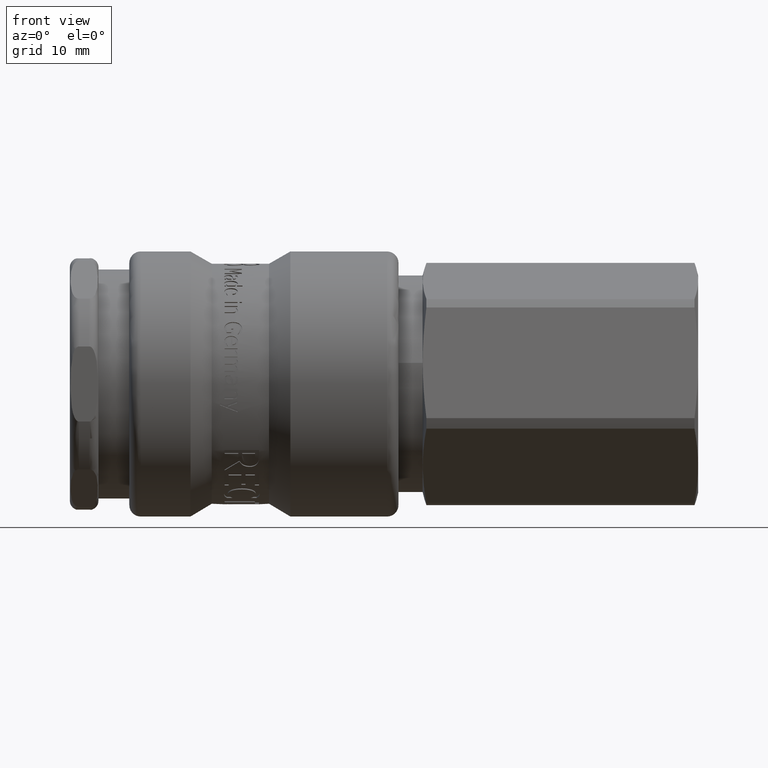
[diagram: clean part render]
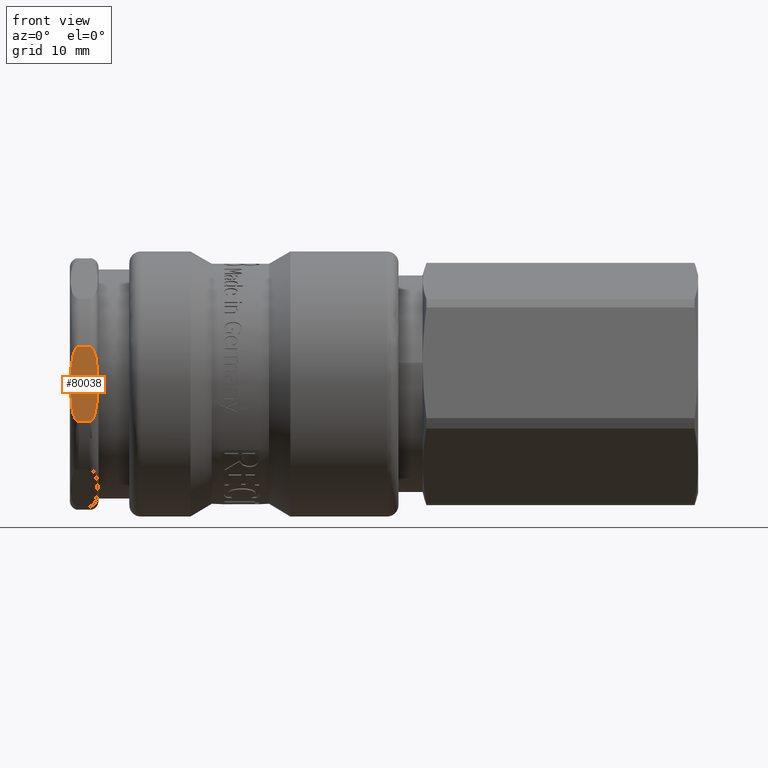
[diagram: same view with one face highlighted and labeled with its STEP entity id]
A machine part, front view. The second image highlights one B-rep face of the part: STEP entity #80038.
In plain terms, the highlighted planar face has unit normal (0, 1, 0).
Its self-contained STEP definition (entity closure, byte-faithful):
#79553=CARTESIAN_POINT('',(0.799999999999998,-10.500000000000004,-3.278719262150994));
#79554=VERTEX_POINT('',#79553);
#79562=CARTESIAN_POINT('',(0.799999999999998,-10.500000000000004,3.278719262150998));
#79563=VERTEX_POINT('',#79562);
#79564=CARTESIAN_POINT('',(0.799999999999998,-10.500000000000004,-3.278719262150994));
#79565=CARTESIAN_POINT('',(0.777895532084728,-10.500000000000004,-3.278719262150994));
#79566=CARTESIAN_POINT('',(0.75166561780548,-10.500000000000004,-3.274771300712465));
#79567=CARTESIAN_POINT('',(0.706034173954641,-10.500000000000004,-3.2613745990915));
#79568=CARTESIAN_POINT('',(0.678365053849381,-10.500000000000004,-3.248439310874959));
#79569=CARTESIAN_POINT('',(0.589002555618165,-10.500000000000004,-3.193187925023121));
#79570=CARTESIAN_POINT('',(0.527394977988849,-10.5,-3.120173886764246));
#79571=CARTESIAN_POINT('',(0.39676149208023,-10.5,-2.919047819138346));
#79572=CARTESIAN_POINT('',(0.330435911178499,-10.5,-2.738591631614819));
#79573=CARTESIAN_POINT('',(0.174245442307713,-10.5,-2.191493105213068));
#79574=CARTESIAN_POINT('',(0.126032054088558,-10.5,-1.749150668261573));
#79575=CARTESIAN_POINT('',(0.06664131136934,-10.5,-0.857870751619868));
#79576=CARTESIAN_POINT('',(0.058380151290432,-10.5,-0.408741346034068));
#79577=CARTESIAN_POINT('',(0.058380151290432,-10.5,1.748601E-015));
#79578=CARTESIAN_POINT('',(0.058380151290432,-10.5,0.408741346034072));
#79579=CARTESIAN_POINT('',(0.06664131136934,-10.5,0.857870751619872));
#79580=CARTESIAN_POINT('',(0.126032054088558,-10.5,1.749150668261577));
#79581=CARTESIAN_POINT('',(0.174245442307713,-10.5,2.191493105213072));
#79582=CARTESIAN_POINT('',(0.330435911178499,-10.5,2.738591631614822));
#79583=CARTESIAN_POINT('',(0.39676149208023,-10.5,2.91904781913835));
#79584=CARTESIAN_POINT('',(0.527394977988849,-10.5,3.12017388676425));
#79585=CARTESIAN_POINT('',(0.589002555618165,-10.500000000000004,3.193187925023124));
#79586=CARTESIAN_POINT('',(0.678365053849381,-10.500000000000004,3.248439310874962));
#79587=CARTESIAN_POINT('',(0.706034173954641,-10.500000000000004,3.261374599091504));
#79588=CARTESIAN_POINT('',(0.75166561780548,-10.500000000000004,3.274771300712468));
#79589=CARTESIAN_POINT('',(0.777895532084728,-10.5,3.278719262151005));
#79590=CARTESIAN_POINT('',(0.799999999999998,-10.5,3.278719262151005));
#79591=B_SPLINE_CURVE_WITH_KNOTS('',3,(#79564,#79565,#79566,#79567,#79568,#79569,#79570,#79571,#79572,#79573,#79574,#79575,#79576,#79577,#79578,#79579,#79580,#79581,#79582,#79583,#79584,#79585,#79586,#79587,#79588,#79589,#79590),.UNSPECIFIED.,.F.,.U.,(4,2,2,2,2,2,3,2,2,2,2,2,4),(-0.331459991565857,-0.324828651191276,-0.317192790529879,-0.293309554510366,-0.245244807620442,-0.122622403810221,0.0,0.122622403810221,0.245244807620442,0.293309554510366,0.317192790529879,0.324828651191276,0.331459991565857),.UNSPECIFIED.);
#79592=EDGE_CURVE('',#79554,#79563,#79591,.T.);
#79707=CARTESIAN_POINT('',(1.7,-10.500000000000004,-3.278719262150994));
#79708=VERTEX_POINT('',#79707);
#79716=CARTESIAN_POINT('',(1.7,-10.500000000000004,-3.278719262150994));
#79717=DIRECTION('',(-1.0,0.0,0.0));
#79718=VECTOR('',#79717,0.900000000000002);
#79719=LINE('',#79716,#79718);
#79720=EDGE_CURVE('',#79708,#79554,#79719,.T.);
#79731=CARTESIAN_POINT('',(1.7,-10.500000000000004,3.278719262150998));
#79732=VERTEX_POINT('',#79731);
#79733=CARTESIAN_POINT('',(0.799999999999998,-10.500000000000004,3.278719262150998));
#79734=DIRECTION('',(1.0,0.0,0.0));
#79735=VECTOR('',#79734,0.900000000000002);
#79736=LINE('',#79733,#79735);
#79737=EDGE_CURVE('',#79563,#79732,#79736,.T.);
#79937=CARTESIAN_POINT('',(1.7,-10.5,3.278719262151005));
#79938=CARTESIAN_POINT('',(1.722104467915271,-10.5,3.278719262151005));
#79939=CARTESIAN_POINT('',(1.748334382194518,-10.500000000000004,3.274771300712468));
#79940=CARTESIAN_POINT('',(1.793965826045357,-10.500000000000004,3.261374599091504));
#79941=CARTESIAN_POINT('',(1.821634946150617,-10.500000000000004,3.248439310874962));
#79942=CARTESIAN_POINT('',(1.910997444381834,-10.500000000000004,3.193187925023124));
#79943=CARTESIAN_POINT('',(1.972605022011149,-10.500000000000004,3.12017388676425));
#79944=CARTESIAN_POINT('',(2.103238507919768,-10.500000000000004,2.91904781913835));
#79945=CARTESIAN_POINT('',(2.169564088821498,-10.500000000000004,2.738591631614822));
#79946=CARTESIAN_POINT('',(2.325754557692284,-10.500000000000004,2.191493105213072));
#79947=CARTESIAN_POINT('',(2.373967945911441,-10.500000000000004,1.749150668261577));
#79948=CARTESIAN_POINT('',(2.433358688630659,-10.500000000000004,0.857870751619872));
#79949=CARTESIAN_POINT('',(2.441619848709565,-10.500000000000004,0.408741346034072));
#79950=CARTESIAN_POINT('',(2.441619848709565,-10.500000000000004,-0.408741346034069));
#79951=CARTESIAN_POINT('',(2.433358688630659,-10.500000000000004,-0.857870751619869));
#79952=CARTESIAN_POINT('',(2.373967945911441,-10.500000000000004,-1.749150668261574));
#79953=CARTESIAN_POINT('',(2.325754557692284,-10.500000000000004,-2.191493105213069));
#79954=CARTESIAN_POINT('',(2.169564088821498,-10.500000000000004,-2.738591631614819));
#79955=CARTESIAN_POINT('',(2.103238507919768,-10.500000000000004,-2.919047819138347));
#79956=CARTESIAN_POINT('',(1.972605022011149,-10.500000000000004,-3.120173886764246));
#79957=CARTESIAN_POINT('',(1.910997444381833,-10.500000000000004,-3.193187925023121));
#79958=CARTESIAN_POINT('',(1.821634946150617,-10.500000000000004,-3.248439310874959));
#79959=CARTESIAN_POINT('',(1.793965826045357,-10.500000000000004,-3.2613745990915));
#79960=CARTESIAN_POINT('',(1.748334382194518,-10.500000000000004,-3.274771300712465));
#79961=CARTESIAN_POINT('',(1.72210446791527,-10.500000000000004,-3.278719262150994));
#79962=CARTESIAN_POINT('',(1.7,-10.500000000000004,-3.278719262150994));
#79963=B_SPLINE_CURVE_WITH_KNOTS('',3,(#79937,#79938,#79939,#79940,#79941,#79942,#79943,#79944,#79945,#79946,#79947,#79948,#79949,#79950,#79951,#79952,#79953,#79954,#79955,#79956,#79957,#79958,#79959,#79960,#79961,#79962),.UNSPECIFIED.,.F.,.U.,(4,2,2,2,2,2,2,2,2,2,2,2,4),(0.331459991565857,0.338091331940438,0.345727192601835,0.369610428621348,0.417675175511271,0.540297579321493,0.662919983131714,0.785542386941935,0.908164790752156,0.956229537642079,0.980112773661593,0.987748634322989,0.994379974697571),.UNSPECIFIED.);
#79964=EDGE_CURVE('',#79732,#79708,#79963,.T.);
#80027=CARTESIAN_POINT('',(3.793341251028509,-10.500000000000004,1.665335E-015));
#80028=DIRECTION('',(0.0,1.0,0.0));
#80029=DIRECTION('',(0.0,0.0,1.0));
#80030=AXIS2_PLACEMENT_3D('',#80027,#80028,#80029);
#80031=PLANE('',#80030);
#80032=ORIENTED_EDGE('',*,*,#79592,.F.);
#80033=ORIENTED_EDGE('',*,*,#79720,.F.);
#80034=ORIENTED_EDGE('',*,*,#79964,.F.);
#80035=ORIENTED_EDGE('',*,*,#79737,.F.);
#80036=EDGE_LOOP('',(#80032,#80033,#80034,#80035));
#80037=FACE_OUTER_BOUND('',#80036,.T.);
#80038=ADVANCED_FACE('',(#80037),#80031,.F.);